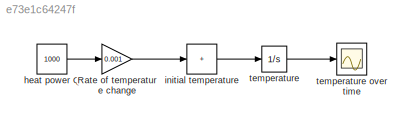
MODEL slx_e73e1c64247f
KIND model
CONFIG AbsTol = auto
CONFIG EnableMultiTasking = off
CONFIG FixedStep = auto
CONFIG MaxStep = auto
CONFIG MinStep = auto
CONFIG RelTol = 1e-3
CONFIG SampleTimeConstraint = Unconstrained
CONFIG SolverName = VariableStepAuto
CONFIG StartTime = 0.0
CONFIG StopTime = 10.0
BLOCK [Gain] Rate of temperature change
  Gain = 0.001
BLOCK [Constant] heat power Q
  NameLocation = top
  Value = 1000
BLOCK [Sum] initial temperature
  IconShape = rectangular
  Inputs = +
  NameLocation = top
BLOCK [Integrator] temperature
  InitialCondition = 20
  LimitOutput = on
  LowerSaturationLimit = 0
  UpperSaturationLimit = 100
BLOCK [Scope] temperature over time
  Floating = off
  NameLocation = top
  NumInputPorts = 1
  ScopeSpecificationString = Simulink.scopes.TimeScopeBlockCfg('CurrentConfiguration', extmgr.ConfigurationSet(extmgr.Configuration('Core','General UI',true),extmgr.Configuration('Core','Source UI',true),extmgr.Configuration('Sources','WiredSimulink',true),extmgr.Configuration('Visuals','Time Domain',true,'SerializedDisplays',{struct('MinYLimReal','18.75','MaxYLimReal','31.25','YLabelReal','','MinYLimMag','18.75','MaxYLimMag'...<+1457ch>
LINE Rate of temperature change:1 -> initial temperature:1
LINE heat power Q:1 -> Rate of temperature change:1
LINE initial temperature:1 -> temperature:1
LINE temperature:1 -> temperature over time:1
